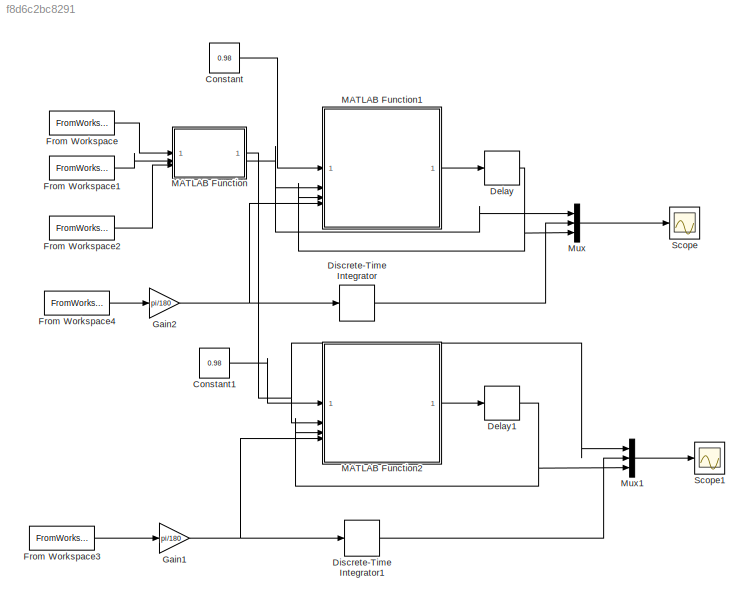
MODEL slx_f8d6c2bc8291
KIND model
CONFIG AbsTol = auto
CONFIG EnableMultiTasking = off
CONFIG FixedStep = 0.01
CONFIG MaxStep = auto
CONFIG MinStep = auto
CONFIG RelTol = 1e-3
CONFIG SampleTimeConstraint = Unconstrained
CONFIG SolverName = FixedStepAuto
CONFIG StartTime = 0.0
CONFIG StopTime = 90.0
BLOCK [Constant] Constant
  Value = 0.98
BLOCK [Constant] Constant1
  Value = 0.98
BLOCK [Delay] Delay
  DelayLength = 1
  InputPortMap = u0
BLOCK [Delay] Delay1
  DelayLength = 1
  InputPortMap = u0
BLOCK [DiscreteIntegrator] Discrete-Time Integrator
  ICPrevOutput = DiscIntNeverNeededParam
  ICPrevScaledInput = DiscIntNeverNeededParam
  InitialConditionSetting = Auto
  SampleTime = -1
BLOCK [DiscreteIntegrator] Discrete-Time Integrator1
  ICPrevOutput = DiscIntNeverNeededParam
  ICPrevScaledInput = DiscIntNeverNeededParam
  InitialConditionSetting = Auto
  SampleTime = -1
BLOCK [FromWorkspace] From Workspace
  VariableName = fx_time
BLOCK [FromWorkspace] From Workspace1
  VariableName = fy_time
BLOCK [FromWorkspace] From Workspace2
  VariableName = fz_time
BLOCK [FromWorkspace] From Workspace3
  VariableName = gx_time
BLOCK [FromWorkspace] From Workspace4
  VariableName = gy_time
BLOCK [Gain] Gain1
  Gain = pi/180
BLOCK [Gain] Gain2
  Gain = pi/180
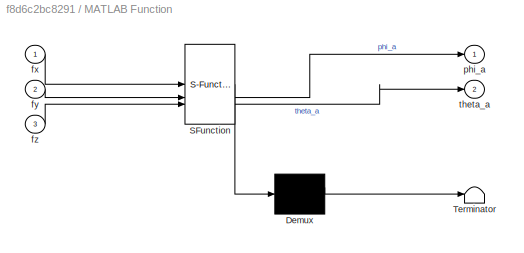
BLOCK [SubSystem] MATLAB Function
  ErrorFcn = Stateflow.Translate.translate
  LibrarySourceBlock = simulink/User-Defined\nFunctions/MATLAB Function
  PermitHierarchicalResolution = ExplicitOnly
  SFBlockType = MATLAB Function
  TreatAsAtomicUnit = on
BLOCK [Demux] MATLAB Function/ Demux 
  Outputs = 1
BLOCK [S-Function] MATLAB Function/ SFunction 
  EnableBusSupport = on
  FunctionName = sf_sfun
  PortCounts = [3 3]
  SFcnIsStateOwnerBlock = off
  SFunctionDeploymentMode = off
  Tag = Stateflow S-Function 2
BLOCK [Terminator] MATLAB Function/ Terminator 
BLOCK [Inport] MATLAB Function/fx
BLOCK [Inport] MATLAB Function/fy
  Port = 2
BLOCK [Inport] MATLAB Function/fz
  Port = 3
BLOCK [Outport] MATLAB Function/phi_a
BLOCK [Outport] MATLAB Function/theta_a
  Port = 2
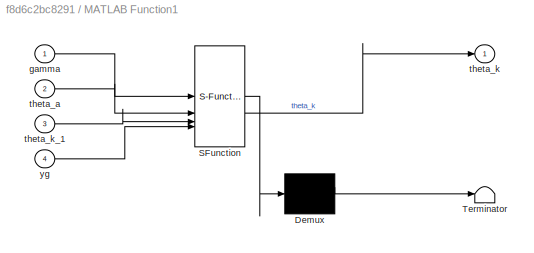
BLOCK [SubSystem] MATLAB Function1
  ErrorFcn = Stateflow.Translate.translate
  LibrarySourceBlock = simulink/User-Defined\nFunctions/MATLAB Function
  PermitHierarchicalResolution = ExplicitOnly
  SFBlockType = MATLAB Function
  TreatAsAtomicUnit = on
BLOCK [Demux] MATLAB Function1/ Demux 
  Outputs = 1
BLOCK [S-Function] MATLAB Function1/ SFunction 
  EnableBusSupport = on
  FunctionName = sf_sfun
  PortCounts = [4 2]
  SFcnIsStateOwnerBlock = off
  SFunctionDeploymentMode = off
  Tag = Stateflow S-Function 1
BLOCK [Terminator] MATLAB Function1/ Terminator 
BLOCK [Inport] MATLAB Function1/gamma
BLOCK [Inport] MATLAB Function1/theta_a
  Port = 2
BLOCK [Outport] MATLAB Function1/theta_k
BLOCK [Inport] MATLAB Function1/theta_k_1
  Port = 3
BLOCK [Inport] MATLAB Function1/yg
  Port = 4
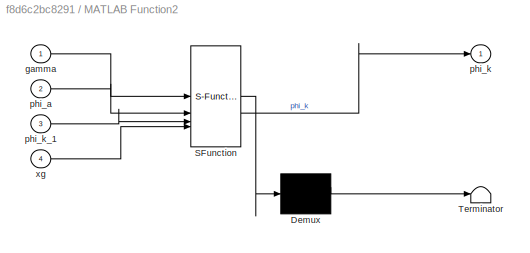
BLOCK [SubSystem] MATLAB Function2
  ErrorFcn = Stateflow.Translate.translate
  LibrarySourceBlock = simulink/User-Defined\nFunctions/MATLAB Function
  PermitHierarchicalResolution = ExplicitOnly
  SFBlockType = MATLAB Function
  TreatAsAtomicUnit = on
BLOCK [Demux] MATLAB Function2/ Demux 
  Outputs = 1
BLOCK [S-Function] MATLAB Function2/ SFunction 
  EnableBusSupport = on
  FunctionName = sf_sfun
  PortCounts = [4 2]
  SFcnIsStateOwnerBlock = off
  SFunctionDeploymentMode = off
  Tag = Stateflow S-Function 3
BLOCK [Terminator] MATLAB Function2/ Terminator 
BLOCK [Inport] MATLAB Function2/gamma
BLOCK [Inport] MATLAB Function2/phi_a
  Port = 2
BLOCK [Outport] MATLAB Function2/phi_k
BLOCK [Inport] MATLAB Function2/phi_k_1
  Port = 3
BLOCK [Inport] MATLAB Function2/xg
  Port = 4
BLOCK [Mux] Mux
  DisplayOption = bar
  Inputs = 3
BLOCK [Mux] Mux1
  DisplayOption = bar
  Inputs = 3
BLOCK [Scope] Scope
  Floating = off
  NumInputPorts = 1
  ScopeSpecificationString = Simulink.scopes.TimeScopeBlockCfg('CurrentConfiguration', extmgr.ConfigurationSet(extmgr.Configuration('Core','General UI',true,'FigureColor',[0 0 0]),extmgr.Configuration('Core','Source UI',true),extmgr.Configuration('Sources','WiredSimulink',true),extmgr.Configuration('Visuals','Time Domain',true,'SerializedDisplays',{struct('MinYLimReal','-0.51254','MaxYLimReal','1.00085','YLabelReal','','MinYL...<+1680ch>
BLOCK [Scope] Scope1
  Floating = off
  NumInputPorts = 1
  ScopeSpecificationString = Simulink.scopes.TimeScopeBlockCfg('CurrentConfiguration', extmgr.ConfigurationSet(extmgr.Configuration('Core','General UI',true,'FigureColor',[0 0 0]),extmgr.Configuration('Core','Source UI',true),extmgr.Configuration('Sources','WiredSimulink',true,'DataLoggingVariableName','ScopeData1'),extmgr.Configuration('Visuals','Time Domain',true,'SerializedDisplays',{struct('MinYLimReal','-0.99776','MaxYLi...<+1733ch>
LINE Constant1:1 -> MATLAB Function2:1
LINE Constant:1 -> MATLAB Function1:1
NET Delay1:1 -> MATLAB Function2:3, Mux1:3
NET Delay:1 -> MATLAB Function1:3, Mux:3
LINE Discrete-Time Integrator1:1 -> Mux1:2
LINE Discrete-Time Integrator:1 -> Mux:2
LINE From Workspace1:1 -> MATLAB Function:2
LINE From Workspace2:1 -> MATLAB Function:3
LINE From Workspace3:1 -> Gain1:1
LINE From Workspace4:1 -> Gain2:1
LINE From Workspace:1 -> MATLAB Function:1
NET Gain1:1 -> Discrete-Time Integrator1:1, MATLAB Function2:4
NET Gain2:1 -> Discrete-Time Integrator:1, MATLAB Function1:4
LINE MATLAB Function1:1 -> Delay:1
LINE MATLAB Function2:1 -> Delay1:1
NET MATLAB Function:1 -> MATLAB Function2:2, Mux1:1
NET MATLAB Function:2 -> MATLAB Function1:2, Mux:1
LINE Mux1:1 -> Scope1:1
LINE Mux:1 -> Scope:1
note: NET lines group one-source signal fan-out (src -> all destinations, sorted); 1:1 wires keep LINE
CHART MATLAB Function1 states=1 transitions=1
  STATE_LABEL 'eML_blk_kernel()'
  STATE_LABEL 'SCRIPT:\nfunction theta_k = fcn(gamma, theta_a,theta_k_1,yg)\n\ntheta_k = (1-gamma)*theta_a+gamma*(theta_k_1+0.01*yg);\nend\n'
CHART MATLAB Function states=1 transitions=1
  STATE_LABEL 'eML_blk_kernel()'
  STATE_LABEL 'SCRIPT:\nfunction [phi_a,theta_a] = fcn(fx,fy,fz)\n    phi_a = atan2(fy,fz);\n    theta_a = atan2(-fx,sqrt(fy.^2+fz.^2));\nend\n'
CHART MATLAB Function2 states=1 transitions=1
  STATE_LABEL 'eML_blk_kernel()'
  STATE_LABEL 'SCRIPT:\nfunction phi_k = fcn(gamma, phi_a,phi_k_1,xg)\n\nphi_k = (1-gamma)*phi_a+gamma*(phi_k_1+0.01*xg);\nend\n'
CHART  states=0 transitions=0
CHART  states=0 transitions=0
CHART  states=0 transitions=0
